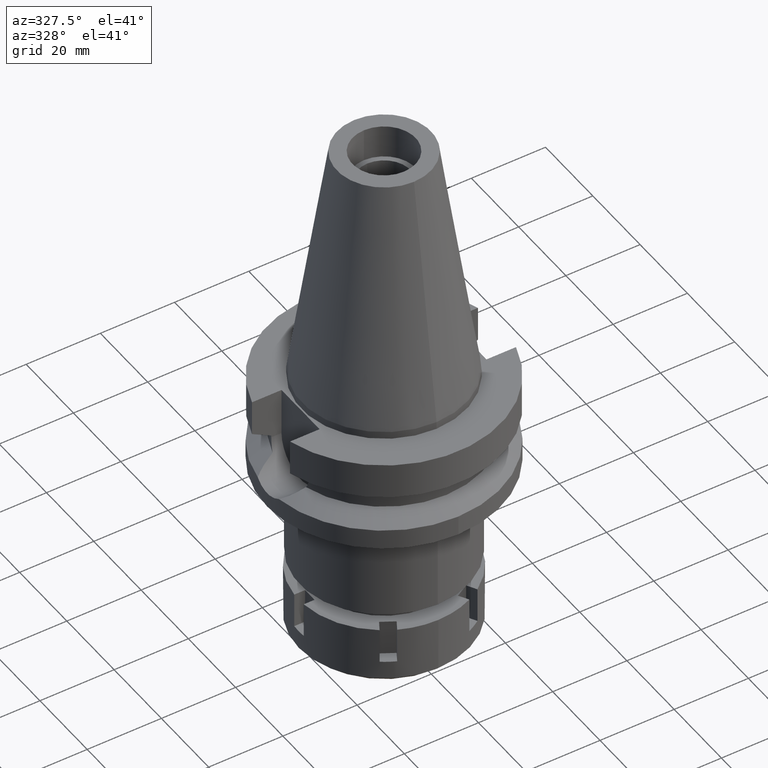
[diagram: clean part render]
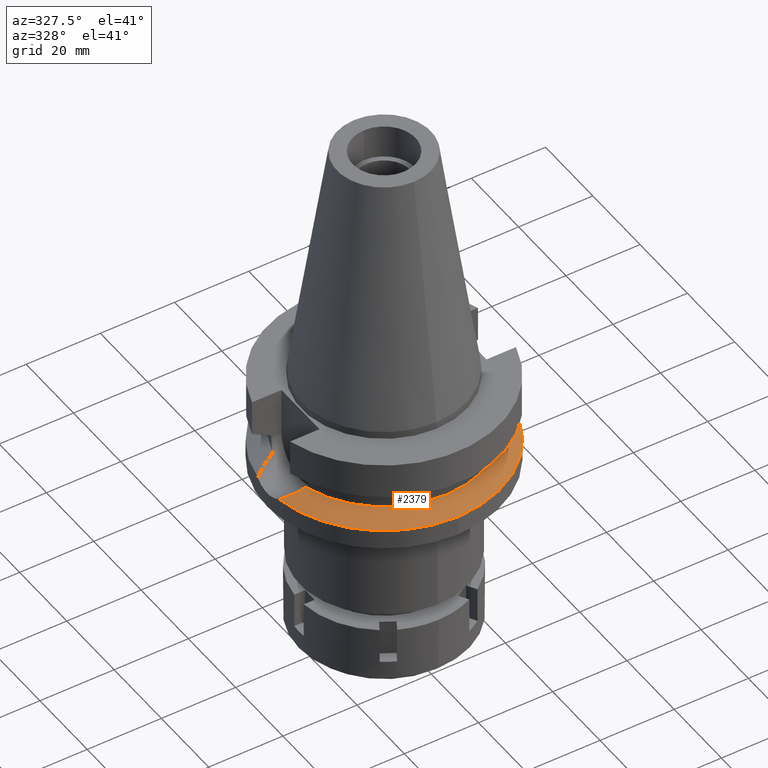
[diagram: same view with one face highlighted and labeled with its STEP entity id]
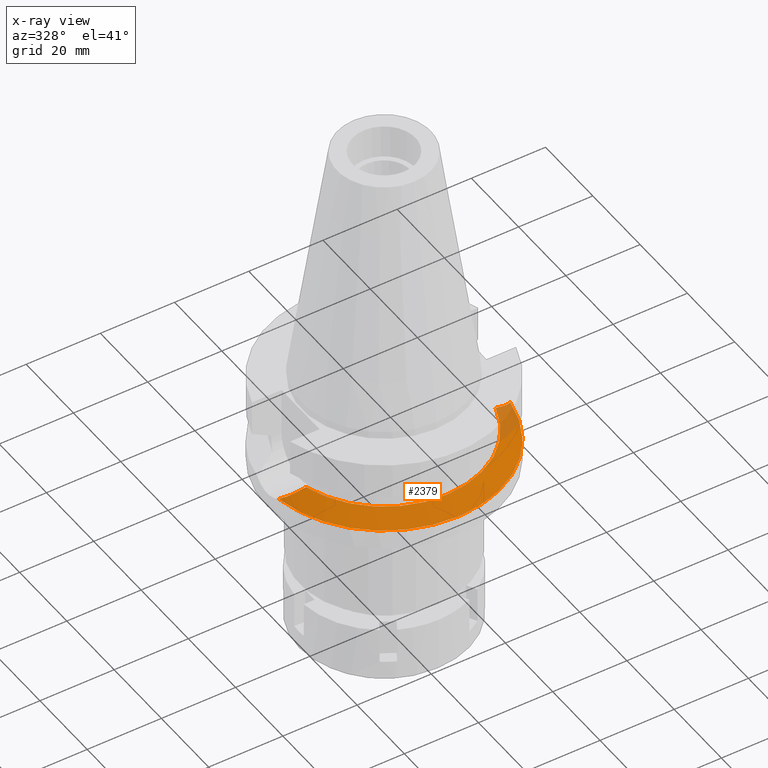
[diagram: x-ray of the same camera — body ghosted, the highlighted face saturated]
A machine part, auxiliary view. The second image highlights one B-rep face of the part: STEP entity #2379.
The next image is the same camera in x-ray: the body ghosted, the highlighted face saturated — about 7% of this face is hidden behind the body in this view.
In plain terms, the highlighted conical surface has half-angle 60 deg.
Its self-contained STEP definition (entity closure, byte-faithful):
#112 = CARTESIAN_POINT ( 'NONE',  ( 31.17899877608999759, -4.485536235554000051, -21.63449434733000132 ) ) ;
#173 = CIRCLE ( 'NONE', #2812, 31.50000000000001421 ) ;
#226 = CARTESIAN_POINT ( 'NONE',  ( 27.59904711760222540, -6.421339734192121007, -19.80792492183684317 ) ) ;
#275 = CONICAL_SURFACE ( 'NONE', #1658, 29.00000000000000000, 1.047197551196400456 ) ;
#285 = AXIS2_PLACEMENT_3D ( 'NONE', #1062, #3231, #519 ) ;
#339 = ORIENTED_EDGE ( 'NONE', *, *, #460, .F. ) ;
#427 = DIRECTION ( 'NONE',  ( 0.0000000000000000000, 0.0000000000000000000, -1.000000000000000000 ) ) ;
#429 = CARTESIAN_POINT ( 'NONE',  ( -28.96763662163414210, -5.824287772802724916, -20.50713231341359233 ) ) ;
#452 = CARTESIAN_POINT ( 'NONE',  ( 0.0000000000000000000, 0.0000000000000000000, -20.19111867435999841 ) ) ;
#460 = EDGE_CURVE ( 'NONE', #2643, #1624, #671, .T. ) ;
#486 = CARTESIAN_POINT ( 'NONE',  ( 27.86478089048796747, -6.316083097399843638, -19.94380596211460244 ) ) ;
#519 = DIRECTION ( 'NONE',  ( -0.9634623335000935818, -0.2678438573619981722, 0.0000000000000000000 ) ) ;
#527 = CARTESIAN_POINT ( 'NONE',  ( 25.53175183775000079, -7.097862220092999941, -18.74774300138999905 ) ) ;
#562 = CARTESIAN_POINT ( 'NONE',  ( -29.92036377012550830, -5.320114840599115880, -20.99335999661380825 ) ) ;
#602 = CARTESIAN_POINT ( 'NONE',  ( -30.50132386325050859, -4.970553674776198250, -21.28950976255338645 ) ) ;
#671 = B_SPLINE_CURVE_WITH_KNOTS ( 'NONE', 3,
 ( #527, #3521, #813, #226, #486, #3472, #2916, #1318, #1025, #1566, #1638, #2717, #2112 ),
 .UNSPECIFIED., .F., .F.,
 ( 4, 2, 2, 1, 2, 2, 4 ),
 ( 0.0000000000000000000, 0.2500000000000011102, 0.3750000000000016653, 0.4375000000000025535, 0.4687500000000031086, 0.5000000000000035527, 1.000000000000000000 ),
 .UNSPECIFIED. ) ;
#705 = CARTESIAN_POINT ( 'NONE',  ( -29.24353084008339110, -5.687358981416843484, -20.64799997889883798 ) ) ;
#720 = DIRECTION ( 'NONE',  ( 0.0000000000000000000, 0.0000000000000000000, -1.000000000000000000 ) ) ;
#778 = EDGE_CURVE ( 'NONE', #1363, #3532, #2660, .T. ) ;
#813 = CARTESIAN_POINT ( 'NONE',  ( 26.76913650373680653, -6.728490305440522512, -19.38306579266142293 ) ) ;
#958 = DIRECTION ( 'NONE',  ( 0.0000000000000000000, 0.0000000000000000000, -1.000000000000000000 ) ) ;
#1025 = CARTESIAN_POINT ( 'NONE',  ( 28.73420061072274834, -5.935753181724756189, -20.38792452498724117 ) ) ;
#1062 = CARTESIAN_POINT ( 'NONE',  ( 0.0000000000000000000, 0.0000000000000000000, -18.74774300138999905 ) ) ;
#1081 = VERTEX_POINT ( 'NONE', #1703 ) ;
#1098 = AXIS2_PLACEMENT_3D ( 'NONE', #2500, #427, #1193 ) ;
#1193 = DIRECTION ( 'NONE',  ( 0.0000000000000000000, -1.000000000000000000, 0.0000000000000000000 ) ) ;
#1318 = CARTESIAN_POINT ( 'NONE',  ( 28.61496259728331637, -5.990966075539554403, -20.32703584287361309 ) ) ;
#1361 = CARTESIAN_POINT ( 'NONE',  ( -25.53175183775000079, -7.097862220092999941, -18.74774300138999905 ) ) ;
#1363 = VERTEX_POINT ( 'NONE', #2838 ) ;
#1368 = CARTESIAN_POINT ( 'NONE',  ( -30.85631774378033754, -4.730344217375754390, -21.47021938259307561 ) ) ;
#1385 = CIRCLE ( 'NONE', #285, 26.49999999999998224 ) ;
#1454 = ORIENTED_EDGE ( 'NONE', *, *, #3359, .F. ) ;
#1524 = CARTESIAN_POINT ( 'NONE',  ( -25.53175183775000079, -7.097862220092999941, -18.74774300138999905 ) ) ;
#1537 = DIRECTION ( 'NONE',  ( 0.9898094849552905306, -0.1423979757318985240, 0.0000000000000000000 ) ) ;
#1566 = CARTESIAN_POINT ( 'NONE',  ( 28.79480322766260159, -5.907242947629214314, -20.41887063142544889 ) ) ;
#1624 = VERTEX_POINT ( 'NONE', #112 ) ;
#1638 = CARTESIAN_POINT ( 'NONE',  ( 29.75685134199667203, -5.447909504434678141, -20.91015769763844645 ) ) ;
#1658 = AXIS2_PLACEMENT_3D ( 'NONE', #452, #958, #2868 ) ;
#1703 = CARTESIAN_POINT ( 'NONE',  ( 0.0000000000000000000, -31.50000000000000000, -21.63449434733000132 ) ) ;
#1744 = CARTESIAN_POINT ( 'NONE',  ( -26.81444765216953030, -6.745271120592850167, -19.40672467638800214 ) ) ;
#1888 = CIRCLE ( 'NONE', #1098, 31.50000000000000000 ) ;
#1919 = CARTESIAN_POINT ( 'NONE',  ( -31.17899877608999759, -4.485536235554000051, -21.63449434733000132 ) ) ;
#1976 = CARTESIAN_POINT ( 'NONE',  ( -29.40391751096783679, -5.603720311251477071, -20.72986622057535655 ) ) ;
#2058 = CARTESIAN_POINT ( 'NONE',  ( -29.07860017491797677, -5.769696421176163881, -20.56379112691876543 ) ) ;
#2096 = ORIENTED_EDGE ( 'NONE', *, *, #3130, .F. ) ;
#2112 = CARTESIAN_POINT ( 'NONE',  ( 31.17899877608999759, -4.485536235554000051, -21.63449434733000132 ) ) ;
#2341 = CARTESIAN_POINT ( 'NONE',  ( -28.91346518876543570, -5.850566059330301272, -20.47947008126295287 ) ) ;
#2379 = ADVANCED_FACE ( 'NONE', ( #3420 ), #275, .T. ) ;
#2497 = CARTESIAN_POINT ( 'NONE',  ( -29.71863219369545916, -5.434839407763721653, -20.89046799753527139 ) ) ;
#2500 = CARTESIAN_POINT ( 'NONE',  ( 0.0000000000000000000, 0.0000000000000000000, -21.63449434733000132 ) ) ;
#2506 = CARTESIAN_POINT ( 'NONE',  ( 25.53175183775000079, -7.097862220092999941, -18.74774300138999905 ) ) ;
#2524 = ORIENTED_EDGE ( 'NONE', *, *, #778, .F. ) ;
#2534 = ORIENTED_EDGE ( 'NONE', *, *, #3399, .F. ) ;
#2643 = VERTEX_POINT ( 'NONE', #2506 ) ;
#2660 = B_SPLINE_CURVE_WITH_KNOTS ( 'NONE', 3,
 ( #1919, #1368, #602, #562, #2497, #1976, #705, #2058, #429, #2341, #3396, #1744, #1524 ),
 .UNSPECIFIED., .F., .F.,
 ( 4, 2, 2, 1, 2, 2, 4 ),
 ( 0.0000000000000000000, 0.2500000000000006661, 0.3750000000000009992, 0.4375000000000017208, 0.4687500000000015543, 0.5000000000000013323, 1.000000000000000000 ),
 .UNSPECIFIED. ) ;
#2717 = CARTESIAN_POINT ( 'NONE',  ( 30.53271950295610893, -4.975848056547046205, -21.30547747253218915 ) ) ;
#2812 = AXIS2_PLACEMENT_3D ( 'NONE', #3209, #720, #1537 ) ;
#2838 = CARTESIAN_POINT ( 'NONE',  ( -31.17899877608999759, -4.485536235554000051, -21.63449434733000132 ) ) ;
#2868 = DIRECTION ( 'NONE',  ( 0.0000000000000000000, -1.000000000000000000, 0.0000000000000000000 ) ) ;
#2916 = CARTESIAN_POINT ( 'NONE',  ( 28.43406124617364839, -6.073458926493446874, -20.23465735011040323 ) ) ;
#3130 = EDGE_CURVE ( 'NONE', #1081, #1363, #1888, .T. ) ;
#3209 = CARTESIAN_POINT ( 'NONE',  ( 0.0000000000000000000, 0.0000000000000000000, -21.63449434733000132 ) ) ;
#3231 = DIRECTION ( 'NONE',  ( 0.0000000000000000000, 0.0000000000000000000, 1.000000000000000000 ) ) ;
#3359 = EDGE_CURVE ( 'NONE', #3532, #2643, #1385, .T. ) ;
#3396 = CARTESIAN_POINT ( 'NONE',  ( -27.92224984078286099, -6.324136672651494706, -19.97328771355827470 ) ) ;
#3399 = EDGE_CURVE ( 'NONE', #1624, #1081, #173, .T. ) ;
#3420 = FACE_OUTER_BOUND ( 'NONE', #3551, .T. ) ;
#3472 = CARTESIAN_POINT ( 'NONE',  ( 28.24702690221243628, -6.154886282494803851, -20.13912331417215995 ) ) ;
#3521 = CARTESIAN_POINT ( 'NONE',  ( 26.17225036754890510, -6.921800149633944521, -19.07679747343568977 ) ) ;
#3532 = VERTEX_POINT ( 'NONE', #1361 ) ;
#3551 = EDGE_LOOP ( 'NONE', ( #2096, #2534, #339, #1454, #2524 ) ) ;